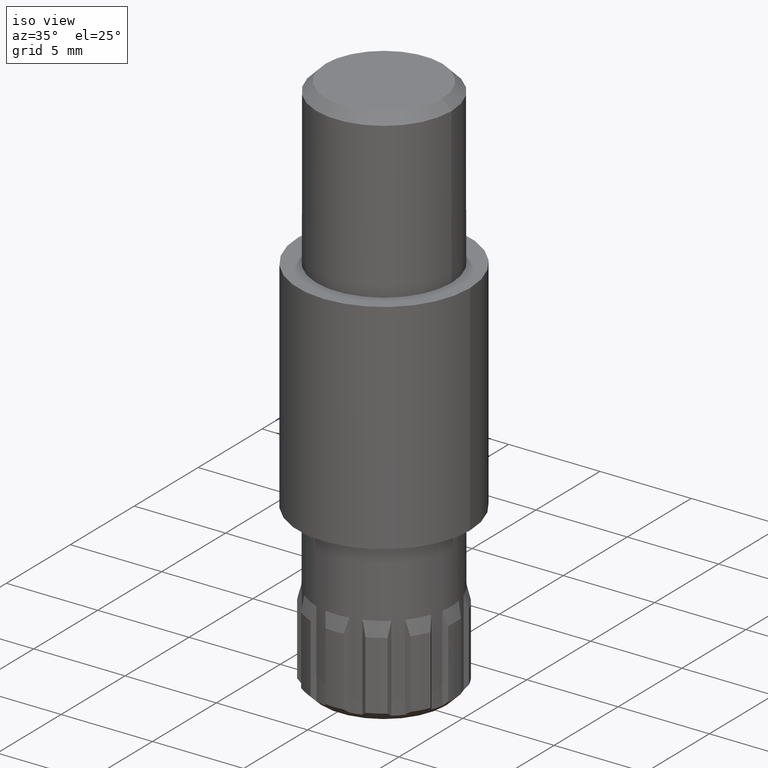
[diagram: clean part render]
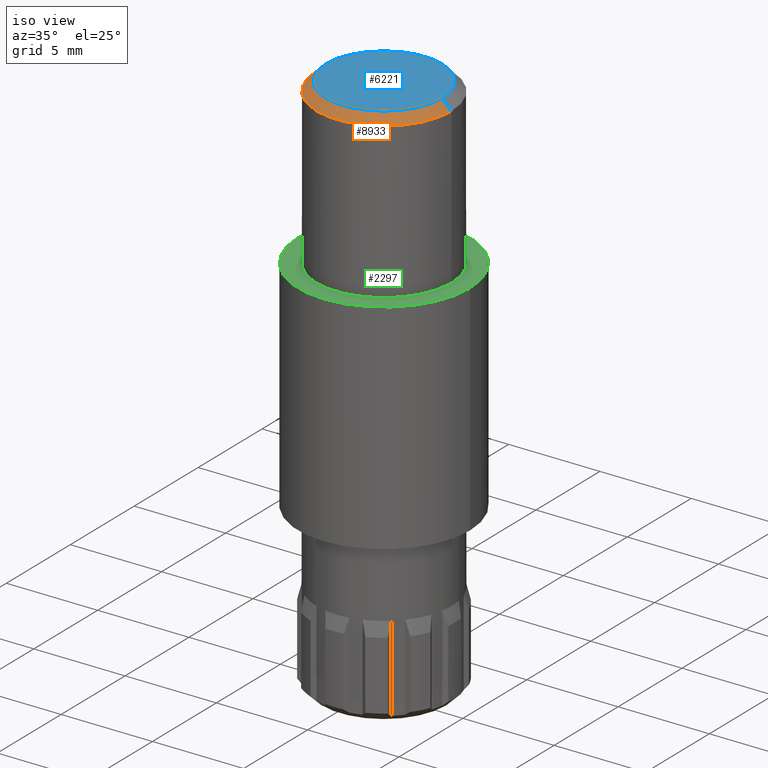
[diagram: same view with three faces highlighted in distinct colors, each labeled with its STEP entity id]
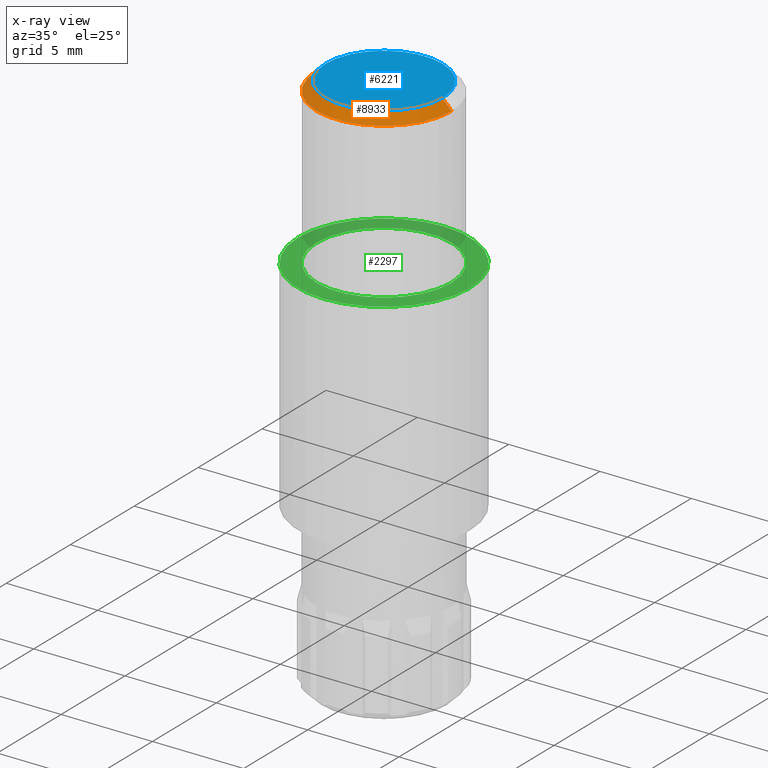
[diagram: x-ray of the same camera — body ghosted, the three highlighted faces saturated]
A machine part, iso view with three faces highlighted in distinct colors.
The next image is the same camera in x-ray (body ghosted, the three faces saturated) — at least one of them is partly hidden behind the body in this view.
Their STEP definitions:

[orange] entity #8933 — the highlighted conical surface has half-angle 45 deg.
#698 = VERTEX_POINT ( 'NONE', #1516 ) ;
#822 = ORIENTED_EDGE ( 'NONE', *, *, #9171, .F. ) ;
#1181 = CARTESIAN_POINT ( 'NONE',  ( 3.700000000000000200, 4.531193156845206200E-016, 29.49999999999999300 ) ) ;
#1493 = CARTESIAN_POINT ( 'NONE',  ( 0.0000000000000000000, 0.0000000000000000000, 30.00000000000000000 ) ) ;
#1516 = CARTESIAN_POINT ( 'NONE',  ( -3.700000000000000200, 0.0000000000000000000, 29.49999999999999300 ) ) ;
#1560 = AXIS2_PLACEMENT_3D ( 'NONE', #1493, #8878, #2540 ) ;
#1715 = EDGE_CURVE ( 'NONE', #6294, #698, #7752, .T. ) ;
#1925 = ORIENTED_EDGE ( 'NONE', *, *, #1715, .T. ) ;
#2048 = VERTEX_POINT ( 'NONE', #4259 ) ;
#2540 = DIRECTION ( 'NONE',  ( 1.000000000000000000, 0.0000000000000000000, 0.0000000000000000000 ) ) ;
#2867 = AXIS2_PLACEMENT_3D ( 'NONE', #10770, #6853, #5792 ) ;
#3320 = VECTOR ( 'NONE', #8699, 1000.000000000000000 ) ;
#3368 = CARTESIAN_POINT ( 'NONE',  ( 3.199999999999998000, 3.918869757271527500E-016, 30.00000000000000000 ) ) ;
#3633 = LINE ( 'NONE', #3368, #3320 ) ;
#4259 = CARTESIAN_POINT ( 'NONE',  ( 3.199999999999998000, 4.225031457058367300E-016, 30.00000000000000000 ) ) ;
#4897 = VECTOR ( 'NONE', #12546, 1000.000000000000000 ) ;
#4933 = CONICAL_SURFACE ( 'NONE', #2867, 3.199999999999998000, 0.7853981633974431700 ) ;
#5271 = FACE_OUTER_BOUND ( 'NONE', #13657, .T. ) ;
#5334 = DIRECTION ( 'NONE',  ( 0.0000000000000000000, 0.0000000000000000000, -1.000000000000000000 ) ) ;
#5792 = DIRECTION ( 'NONE',  ( -1.000000000000000000, 0.0000000000000000000, 0.0000000000000000000 ) ) ;
#6294 = VERTEX_POINT ( 'NONE', #9974 ) ;
#6447 = CIRCLE ( 'NONE', #1560, 3.199999999999998000 ) ;
#6853 = DIRECTION ( 'NONE',  ( 0.0000000000000000000, 0.0000000000000000000, -1.000000000000000000 ) ) ;
#7360 = EDGE_CURVE ( 'NONE', #2048, #11485, #3633, .T. ) ;
#7427 = EDGE_CURVE ( 'NONE', #6294, #2048, #6447, .T. ) ;
#7752 = LINE ( 'NONE', #9339, #4897 ) ;
#7844 = AXIS2_PLACEMENT_3D ( 'NONE', #11673, #5334, #12725 ) ;
#7852 = ORIENTED_EDGE ( 'NONE', *, *, #7427, .F. ) ;
#8699 = DIRECTION ( 'NONE',  ( 0.7071067811865439100, 8.659560562354889700E-017, -0.7071067811865512400 ) ) ;
#8878 = DIRECTION ( 'NONE',  ( 0.0000000000000000000, 0.0000000000000000000, 1.000000000000000000 ) ) ;
#8933 = ADVANCED_FACE ( 'NONE', ( #5271 ), #4933, .T. ) ;
#8936 = ORIENTED_EDGE ( 'NONE', *, *, #7360, .F. ) ;
#9171 = EDGE_CURVE ( 'NONE', #11485, #698, #9258, .T. ) ;
#9258 = CIRCLE ( 'NONE', #7844, 3.700000000000000200 ) ;
#9339 = CARTESIAN_POINT ( 'NONE',  ( -3.199999999999998000, 0.0000000000000000000, 30.00000000000000000 ) ) ;
#9974 = CARTESIAN_POINT ( 'NONE',  ( -3.199999999999998000, 0.0000000000000000000, 30.00000000000000000 ) ) ;
#10770 = CARTESIAN_POINT ( 'NONE',  ( 0.0000000000000000000, 0.0000000000000000000, 30.00000000000000000 ) ) ;
#11485 = VERTEX_POINT ( 'NONE', #1181 ) ;
#11673 = CARTESIAN_POINT ( 'NONE',  ( 0.0000000000000000000, 0.0000000000000000000, 29.49999999999999300 ) ) ;
#12546 = DIRECTION ( 'NONE',  ( -0.7071067811865439100, 0.0000000000000000000, -0.7071067811865512400 ) ) ;
#12725 = DIRECTION ( 'NONE',  ( 1.000000000000000000, 0.0000000000000000000, 0.0000000000000000000 ) ) ;
#13657 = EDGE_LOOP ( 'NONE', ( #8936, #7852, #1925, #822 ) ) ;

[blue] entity #6221 — the highlighted planar face has unit normal (0, 0, 1).
#339 = EDGE_CURVE ( 'NONE', #2048, #6294, #9910, .T. ) ;
#613 = CARTESIAN_POINT ( 'NONE',  ( 0.0000000000000000000, 0.0000000000000000000, 30.00000000000000000 ) ) ;
#1493 = CARTESIAN_POINT ( 'NONE',  ( 0.0000000000000000000, 0.0000000000000000000, 30.00000000000000000 ) ) ;
#1560 = AXIS2_PLACEMENT_3D ( 'NONE', #1493, #8878, #2540 ) ;
#1967 = AXIS2_PLACEMENT_3D ( 'NONE', #613, #5362, #5588 ) ;
#2048 = VERTEX_POINT ( 'NONE', #4259 ) ;
#2540 = DIRECTION ( 'NONE',  ( 1.000000000000000000, 0.0000000000000000000, 0.0000000000000000000 ) ) ;
#3289 = CARTESIAN_POINT ( 'NONE',  ( 0.0000000000000000000, 0.0000000000000000000, 30.00000000000000000 ) ) ;
#4259 = CARTESIAN_POINT ( 'NONE',  ( 3.199999999999998000, 4.225031457058367300E-016, 30.00000000000000000 ) ) ;
#4313 = ORIENTED_EDGE ( 'NONE', *, *, #339, .T. ) ;
#4339 = DIRECTION ( 'NONE',  ( 0.0000000000000000000, 0.0000000000000000000, 1.000000000000000000 ) ) ;
#5359 = PLANE ( 'NONE',  #10112 ) ;
#5362 = DIRECTION ( 'NONE',  ( 0.0000000000000000000, 0.0000000000000000000, 1.000000000000000000 ) ) ;
#5588 = DIRECTION ( 'NONE',  ( 1.000000000000000000, 0.0000000000000000000, 0.0000000000000000000 ) ) ;
#6221 = ADVANCED_FACE ( 'NONE', ( #13088 ), #5359, .T. ) ;
#6294 = VERTEX_POINT ( 'NONE', #9974 ) ;
#6447 = CIRCLE ( 'NONE', #1560, 3.199999999999998000 ) ;
#7427 = EDGE_CURVE ( 'NONE', #6294, #2048, #6447, .T. ) ;
#7813 = ORIENTED_EDGE ( 'NONE', *, *, #7427, .T. ) ;
#8878 = DIRECTION ( 'NONE',  ( 0.0000000000000000000, 0.0000000000000000000, 1.000000000000000000 ) ) ;
#9910 = CIRCLE ( 'NONE', #1967, 3.199999999999998000 ) ;
#9974 = CARTESIAN_POINT ( 'NONE',  ( -3.199999999999998000, 0.0000000000000000000, 30.00000000000000000 ) ) ;
#10112 = AXIS2_PLACEMENT_3D ( 'NONE', #3289, #4339, #11750 ) ;
#11702 = EDGE_LOOP ( 'NONE', ( #7813, #4313 ) ) ;
#11750 = DIRECTION ( 'NONE',  ( 1.000000000000000000, 0.0000000000000000000, -0.0000000000000000000 ) ) ;
#13088 = FACE_OUTER_BOUND ( 'NONE', #11702, .T. ) ;

[green] entity #2297 — the highlighted planar face has unit normal (0, 0, 1).
#228 = EDGE_CURVE ( 'NONE', #3505, #3837, #7777, .T. ) ;
#272 = AXIS2_PLACEMENT_3D ( 'NONE', #7261, #967, #8341 ) ;
#490 = DIRECTION ( 'NONE',  ( 0.0000000000000000000, 0.0000000000000000000, 1.000000000000000000 ) ) ;
#668 = EDGE_CURVE ( 'NONE', #6320, #3683, #12885, .T. ) ;
#779 = DIRECTION ( 'NONE',  ( 1.000000000000000000, 0.0000000000000000000, -0.0000000000000000000 ) ) ;
#967 = DIRECTION ( 'NONE',  ( 0.0000000000000000000, 0.0000000000000000000, 1.000000000000000000 ) ) ;
#1512 = EDGE_LOOP ( 'NONE', ( #5338, #12691 ) ) ;
#1928 = CARTESIAN_POINT ( 'NONE',  ( 0.0000000000000000000, 0.0000000000000000000, 12.00000000000000000 ) ) ;
#1955 = FACE_OUTER_BOUND ( 'NONE', #5514, .T. ) ;
#2096 = CARTESIAN_POINT ( 'NONE',  ( -4.700000000000000200, 0.0000000000000000000, 12.00000000000000000 ) ) ;
#2297 = ADVANCED_FACE ( 'NONE', ( #1955, #7227 ), #12961, .T. ) ;
#2301 = DIRECTION ( 'NONE',  ( 1.000000000000000000, 0.0000000000000000000, 0.0000000000000000000 ) ) ;
#3505 = VERTEX_POINT ( 'NONE', #7006 ) ;
#3683 = VERTEX_POINT ( 'NONE', #2096 ) ;
#3837 = VERTEX_POINT ( 'NONE', #6914 ) ;
#4273 = AXIS2_PLACEMENT_3D ( 'NONE', #5923, #13325, #6992 ) ;
#5338 = ORIENTED_EDGE ( 'NONE', *, *, #228, .F. ) ;
#5514 = EDGE_LOOP ( 'NONE', ( #5970, #9439 ) ) ;
#5835 = EDGE_CURVE ( 'NONE', #3683, #6320, #7314, .T. ) ;
#5923 = CARTESIAN_POINT ( 'NONE',  ( 0.0000000000000000000, 0.0000000000000000000, 12.00000000000000000 ) ) ;
#5970 = ORIENTED_EDGE ( 'NONE', *, *, #5835, .T. ) ;
#6320 = VERTEX_POINT ( 'NONE', #6822 ) ;
#6822 = CARTESIAN_POINT ( 'NONE',  ( 4.700000000000000200, 5.755839955992559700E-016, 12.00000000000000000 ) ) ;
#6914 = CARTESIAN_POINT ( 'NONE',  ( 3.700000000000000200, 4.531193156845206200E-016, 12.00000000000000000 ) ) ;
#6992 = DIRECTION ( 'NONE',  ( 1.000000000000000000, 0.0000000000000000000, 0.0000000000000000000 ) ) ;
#7006 = CARTESIAN_POINT ( 'NONE',  ( -3.700000000000000200, 0.0000000000000000000, 12.00000000000000000 ) ) ;
#7227 = FACE_BOUND ( 'NONE', #1512, .T. ) ;
#7261 = CARTESIAN_POINT ( 'NONE',  ( 0.0000000000000000000, 0.0000000000000000000, 12.00000000000000000 ) ) ;
#7314 = CIRCLE ( 'NONE', #272, 4.700000000000000200 ) ;
#7739 = AXIS2_PLACEMENT_3D ( 'NONE', #10165, #12629, #779 ) ;
#7777 = CIRCLE ( 'NONE', #9998, 3.700000000000000200 ) ;
#8341 = DIRECTION ( 'NONE',  ( 1.000000000000000000, 0.0000000000000000000, 0.0000000000000000000 ) ) ;
#8345 = AXIS2_PLACEMENT_3D ( 'NONE', #1928, #490, #2301 ) ;
#8443 = CIRCLE ( 'NONE', #4273, 3.700000000000000200 ) ;
#8960 = EDGE_CURVE ( 'NONE', #3837, #3505, #8443, .T. ) ;
#9439 = ORIENTED_EDGE ( 'NONE', *, *, #668, .T. ) ;
#9998 = AXIS2_PLACEMENT_3D ( 'NONE', #10359, #12567, #10492 ) ;
#10165 = CARTESIAN_POINT ( 'NONE',  ( 0.0000000000000000000, 0.0000000000000000000, 12.00000000000000000 ) ) ;
#10359 = CARTESIAN_POINT ( 'NONE',  ( 0.0000000000000000000, 0.0000000000000000000, 12.00000000000000000 ) ) ;
#10492 = DIRECTION ( 'NONE',  ( 1.000000000000000000, 0.0000000000000000000, 0.0000000000000000000 ) ) ;
#12567 = DIRECTION ( 'NONE',  ( 0.0000000000000000000, 0.0000000000000000000, 1.000000000000000000 ) ) ;
#12629 = DIRECTION ( 'NONE',  ( 0.0000000000000000000, 0.0000000000000000000, 1.000000000000000000 ) ) ;
#12691 = ORIENTED_EDGE ( 'NONE', *, *, #8960, .F. ) ;
#12885 = CIRCLE ( 'NONE', #8345, 4.700000000000000200 ) ;
#12961 = PLANE ( 'NONE',  #7739 ) ;
#13325 = DIRECTION ( 'NONE',  ( 0.0000000000000000000, 0.0000000000000000000, 1.000000000000000000 ) ) ;